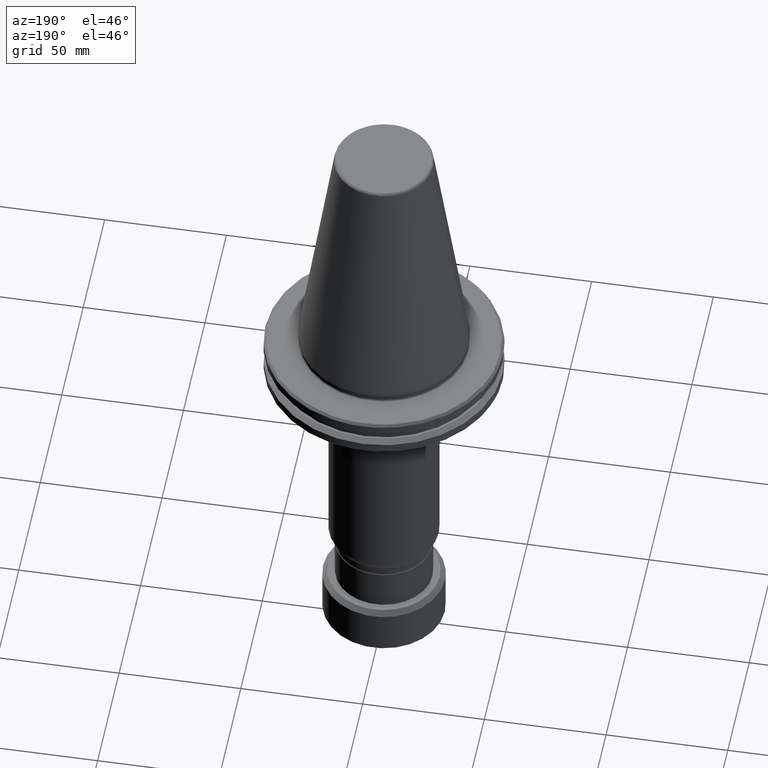
[diagram: clean part render]
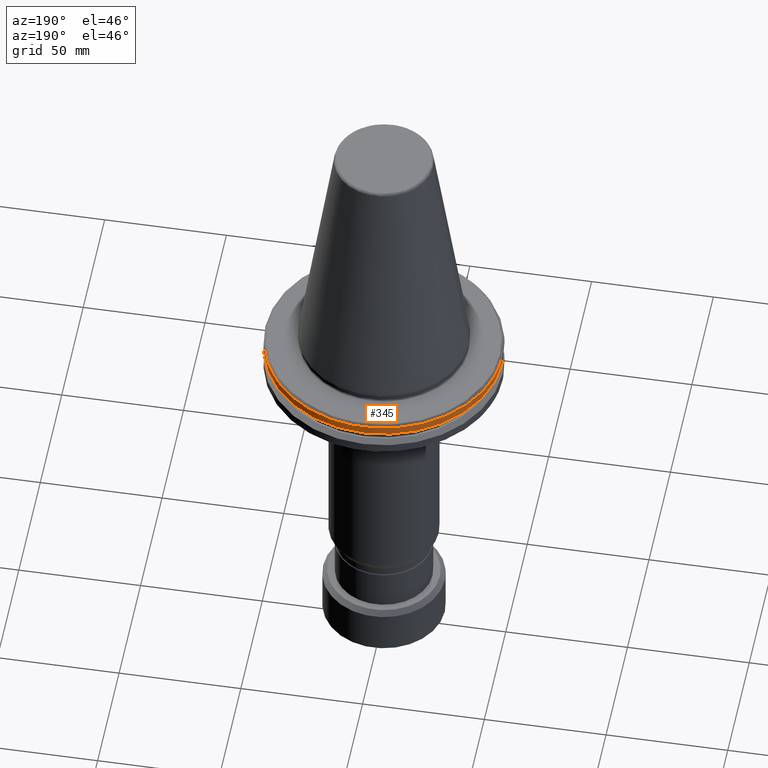
[diagram: same view with one face highlighted and labeled with its STEP entity id]
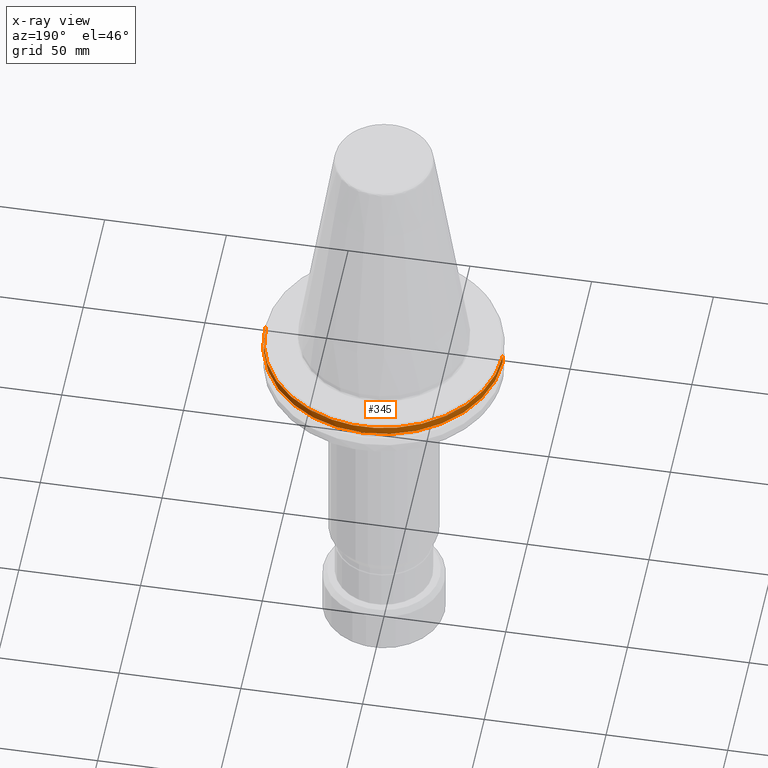
[diagram: x-ray of the same camera — body ghosted, the highlighted face saturated]
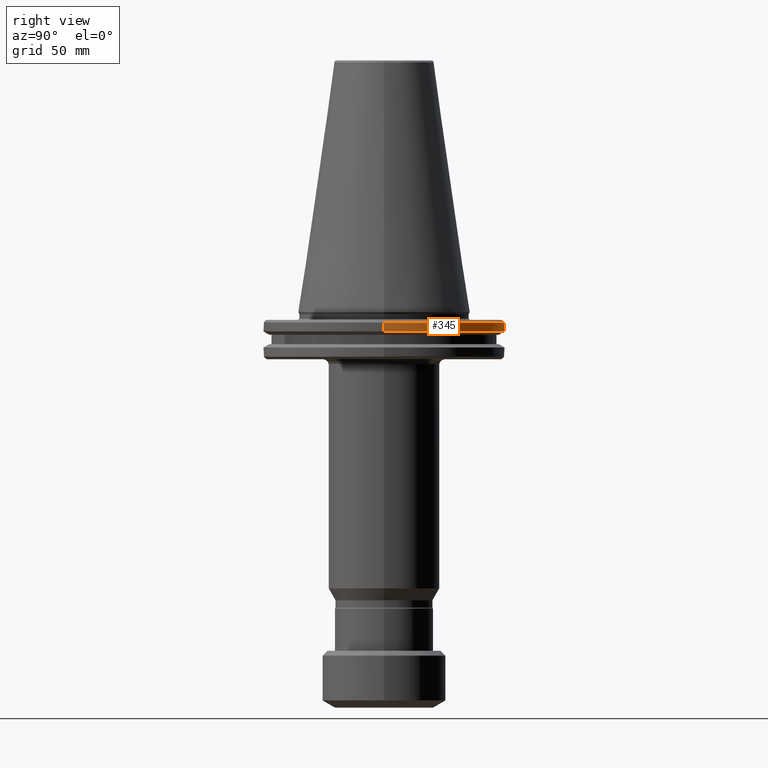
[diagram: same view with one face highlighted and labeled with its STEP entity id]
A machine part, auxiliary view. The second image highlights one B-rep face of the part: STEP entity #345.
The next image is the same camera in x-ray: the body ghosted, the highlighted face saturated — about 0% of this face is hidden behind the body in this view.
A second angle (right view) of the same face is appended — the face is thin or edge-on in the first view.
In plain terms, the highlighted cylindrical surface (partial cylindrical patch) has radius 48.75 mm, axis along (0, 0, 1).
Its self-contained STEP definition (entity closure, byte-faithful):
#14 = ORIENTED_EDGE ( 'NONE', *, *, #795, .T. ) ;
#144 = ORIENTED_EDGE ( 'NONE', *, *, #2110, .F. ) ;
#150 = DIRECTION ( 'NONE',  ( 1.000000000000000000, -8.881784197001252300E-016, 0.0000000000000000000 ) ) ;
#288 = ORIENTED_EDGE ( 'NONE', *, *, #981, .F. ) ;
#345 = ADVANCED_FACE ( 'NONE', ( #3098 ), #3233, .T. ) ;
#422 = VERTEX_POINT ( 'NONE', #2453 ) ;
#593 = EDGE_CURVE ( 'NONE', #2513, #2030, #3375, .T. ) ;
#637 = CARTESIAN_POINT ( 'NONE',  ( 13.39707817141273200, 46.87302845420867900, -4.365685424949238500 ) ) ;
#640 = ORIENTED_EDGE ( 'NONE', *, *, #1837, .F. ) ;
#643 = DIRECTION ( 'NONE',  ( 0.0000000000000000000, 0.0000000000000000000, 1.000000000000000000 ) ) ;
#648 = LINE ( 'NONE', #3203, #2826 ) ;
#654 = AXIS2_PLACEMENT_3D ( 'NONE', #1941, #1373, #1273 ) ;
#730 = CARTESIAN_POINT ( 'NONE',  ( 0.0000000000000000000, 0.0000000000000000000, 109.4760732604896600 ) ) ;
#752 = DIRECTION ( 'NONE',  ( -0.0000000000000000000, -0.0000000000000000000, 1.000000000000000000 ) ) ;
#795 = EDGE_CURVE ( 'NONE', #2267, #422, #1010, .T. ) ;
#981 = EDGE_CURVE ( 'NONE', #3418, #3220, #1896, .T. ) ;
#1008 = DIRECTION ( 'NONE',  ( -0.0000000000000000000, -0.0000000000000000000, -1.000000000000000000 ) ) ;
#1010 = CIRCLE ( 'NONE', #1335, 48.75000000000000000 ) ;
#1019 = DIRECTION ( 'NONE',  ( 1.000000000000000000, 0.0000000000000000000, 0.0000000000000000000 ) ) ;
#1053 = CARTESIAN_POINT ( 'NONE',  ( 0.0000000000000000000, 0.0000000000000000000, -7.852404735808352000 ) ) ;
#1273 = DIRECTION ( 'NONE',  ( 1.000000000000000000, 0.0000000000000000000, 0.0000000000000000000 ) ) ;
#1274 = LINE ( 'NONE', #2282, #2062 ) ;
#1335 = AXIS2_PLACEMENT_3D ( 'NONE', #2584, #1008, #150 ) ;
#1373 = DIRECTION ( 'NONE',  ( 0.0000000000000000000, 0.0000000000000000000, 1.000000000000000000 ) ) ;
#1444 = CARTESIAN_POINT ( 'NONE',  ( 48.75000000000001400, 0.0000000000000000000, -4.365685424949240300 ) ) ;
#1637 = DIRECTION ( 'NONE',  ( 0.0000000000000000000, 0.0000000000000000000, 1.000000000000000000 ) ) ;
#1671 = CARTESIAN_POINT ( 'NONE',  ( 48.75000000000000000, 0.0000000000000000000, -7.852404735808352000 ) ) ;
#1837 = EDGE_CURVE ( 'NONE', #3220, #2513, #648, .T. ) ;
#1896 = CIRCLE ( 'NONE', #3318, 48.75000000000000000 ) ;
#1934 = AXIS2_PLACEMENT_3D ( 'NONE', #730, #1637, #1019 ) ;
#1941 = CARTESIAN_POINT ( 'NONE',  ( 0.0000000000000000000, 0.0000000000000000000, -4.365685424949240300 ) ) ;
#2030 = VERTEX_POINT ( 'NONE', #637 ) ;
#2062 = VECTOR ( 'NONE', #643, 1000.000000000000000 ) ;
#2110 = EDGE_CURVE ( 'NONE', #2030, #422, #2426, .T. ) ;
#2169 = DIRECTION ( 'NONE',  ( 0.0000000000000000000, 0.0000000000000000000, 1.000000000000000000 ) ) ;
#2184 = AXIS2_PLACEMENT_3D ( 'NONE', #2378, #752, #2616 ) ;
#2267 = VERTEX_POINT ( 'NONE', #3406 ) ;
#2282 = CARTESIAN_POINT ( 'NONE',  ( -48.75000000000000000, 5.970153145843347100E-015, 109.4760732604896600 ) ) ;
#2378 = CARTESIAN_POINT ( 'NONE',  ( 0.0000000000000000000, 0.0000000000000000000, -4.365685424949236700 ) ) ;
#2416 = EDGE_LOOP ( 'NONE', ( #288, #3226, #14, #144, #2755, #640 ) ) ;
#2426 = CIRCLE ( 'NONE', #2184, 48.75000000000000700 ) ;
#2453 = CARTESIAN_POINT ( 'NONE',  ( -13.51915856623730700, 46.83796378645140400, -4.365685424949245600 ) ) ;
#2513 = VERTEX_POINT ( 'NONE', #1444 ) ;
#2584 = CARTESIAN_POINT ( 'NONE',  ( 0.0000000000000000000, 0.0000000000000000000, -4.365685424949236700 ) ) ;
#2616 = DIRECTION ( 'NONE',  ( 1.000000000000000000, 0.0000000000000000000, 0.0000000000000000000 ) ) ;
#2755 = ORIENTED_EDGE ( 'NONE', *, *, #593, .F. ) ;
#2783 = EDGE_CURVE ( 'NONE', #3418, #2267, #1274, .T. ) ;
#2826 = VECTOR ( 'NONE', #2169, 1000.000000000000000 ) ;
#2858 = DIRECTION ( 'NONE',  ( 1.000000000000000000, 0.0000000000000000000, 0.0000000000000000000 ) ) ;
#3098 = FACE_OUTER_BOUND ( 'NONE', #2416, .T. ) ;
#3203 = CARTESIAN_POINT ( 'NONE',  ( 48.75000000000000000, 0.0000000000000000000, 109.4760732604896600 ) ) ;
#3220 = VERTEX_POINT ( 'NONE', #1671 ) ;
#3226 = ORIENTED_EDGE ( 'NONE', *, *, #2783, .T. ) ;
#3233 = CYLINDRICAL_SURFACE ( 'NONE', #1934, 48.75000000000000000 ) ;
#3287 = CARTESIAN_POINT ( 'NONE',  ( -48.75000000000000000, 5.970153145843347100E-015, -7.852404735808352000 ) ) ;
#3292 = DIRECTION ( 'NONE',  ( -0.0000000000000000000, -0.0000000000000000000, -1.000000000000000000 ) ) ;
#3318 = AXIS2_PLACEMENT_3D ( 'NONE', #1053, #3292, #2858 ) ;
#3375 = CIRCLE ( 'NONE', #654, 48.75000000000000000 ) ;
#3406 = CARTESIAN_POINT ( 'NONE',  ( -48.75000000000000000, 5.970153145843347100E-015, -4.365685424949236700 ) ) ;
#3418 = VERTEX_POINT ( 'NONE', #3287 ) ;